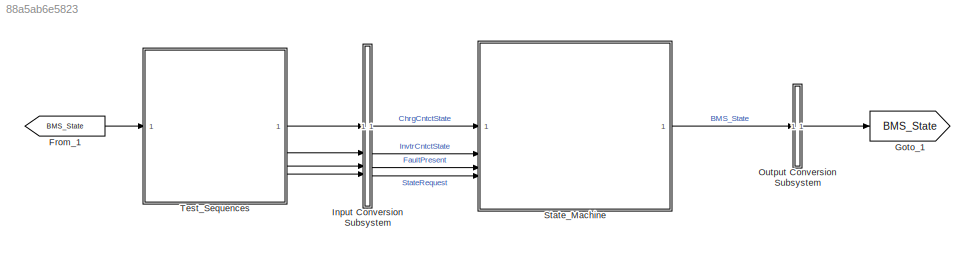
MODEL slx_88a5ab6e5823
KIND model
CONFIG AbsTol = auto
CONFIG EnableMultiTasking = off
CONFIG FixedStep = auto
CONFIG MaxStep = auto
CONFIG MinStep = auto
CONFIG RelTol = 1e-3
CONFIG SampleTimeConstraint = Unconstrained
CONFIG SolverName = FixedStepDiscrete
CONFIG StartTime = 0.0
CONFIG StopTime = 9000
BLOCK [From] From_1
  GotoTag = BMS_State
BLOCK [Goto] Goto_1
  GotoTag = BMS_State
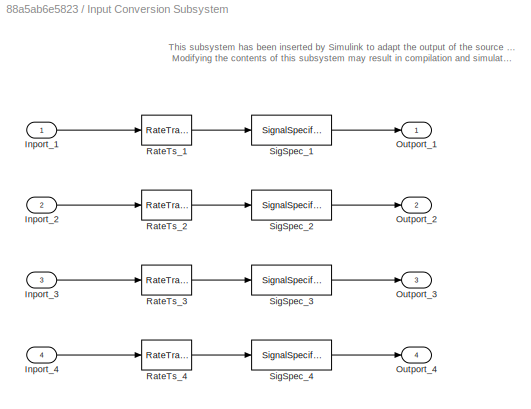
BLOCK [SubSystem] Input Conversion Subsystem
  AttributesFormatString = %<Description>
  Description = Signal spec.\nand routing
  Permissions = ReadOnly
  PermitHierarchicalResolution = ExplicitOnly
  Tag = __SLT_ICS__
  TreatAsGroupedWhenPropagatingVariantConditions = off
  UserDataPersistent = on
BLOCK [Inport] Input Conversion Subsystem/Inport_1
BLOCK [Inport] Input Conversion Subsystem/Inport_2
  Port = 2
BLOCK [Inport] Input Conversion Subsystem/Inport_3
  Port = 3
BLOCK [Inport] Input Conversion Subsystem/Inport_4
  Port = 4
BLOCK [Outport] Input Conversion Subsystem/Outport_1
BLOCK [Outport] Input Conversion Subsystem/Outport_2
  Port = 2
BLOCK [Outport] Input Conversion Subsystem/Outport_3
  Port = 3
BLOCK [Outport] Input Conversion Subsystem/Outport_4
  Port = 4
BLOCK [RateTransition] Input Conversion Subsystem/RateTs_1
  OutPortSampleTime = 0.1
BLOCK [RateTransition] Input Conversion Subsystem/RateTs_2
  OutPortSampleTime = 0.1
BLOCK [RateTransition] Input Conversion Subsystem/RateTs_3
  OutPortSampleTime = 0.1
BLOCK [RateTransition] Input Conversion Subsystem/RateTs_4
  OutPortSampleTime = 0.1
BLOCK [SignalSpecification] Input Conversion Subsystem/SigSpec_1
  Dimensions = [1]
  OutDataTypeStr = Enum: Contact
  SampleTime = 0.1
  SignalType = real
  VarSizeSig = No
BLOCK [SignalSpecification] Input Conversion Subsystem/SigSpec_2
  Dimensions = [1]
  OutDataTypeStr = Enum: Contact
  SampleTime = 0.1
  SignalType = real
  VarSizeSig = No
BLOCK [SignalSpecification] Input Conversion Subsystem/SigSpec_3
  Dimensions = [1]
  OutDataTypeStr = boolean
  SampleTime = 0.1
  SignalType = real
  VarSizeSig = No
BLOCK [SignalSpecification] Input Conversion Subsystem/SigSpec_4
  Dimensions = [1]
  OutDataTypeStr = Enum: SRE
  SampleTime = 0.1
  SignalType = real
  VarSizeSig = No
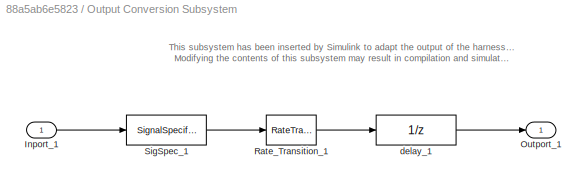
BLOCK [SubSystem] Output Conversion Subsystem
  AttributesFormatString = %<Description>
  Description = Signal spec.\nand routing
  Permissions = ReadOnly
  PermitHierarchicalResolution = ExplicitOnly
  Tag = __SLT_OCS__
  TreatAsGroupedWhenPropagatingVariantConditions = off
  UserDataPersistent = on
BLOCK [Inport] Output Conversion Subsystem/Inport_1
BLOCK [Outport] Output Conversion Subsystem/Outport_1
BLOCK [RateTransition] Output Conversion Subsystem/Rate_Transition_1
  InitialCondition = BMS_State_Enum.BMS_Standby
  OutPortSampleTimeOpt = Inherit
BLOCK [SignalSpecification] Output Conversion Subsystem/SigSpec_1
  Dimensions = [1]
  OutDataTypeStr = Enum: BMS_State_Enum
  SampleTime = 0.1
  SignalType = real
  VarSizeSig = No
BLOCK [UnitDelay] Output Conversion Subsystem/delay_1
  InitialCondition = BMS_State_Enum.BMS_Standby
  SampleTime = -1
BLOCK [ModelReference] State_Machine
  ModelNameDialog = State_Machine
  ModelReferenceVersion = 5.1
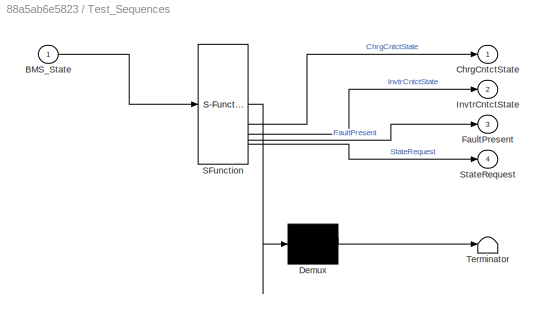
BLOCK [SubSystem] Test_Sequences
  ErrorFcn = Stateflow.Translate.translate
  PermitHierarchicalResolution = ExplicitOnly
  SFBlockType = Test Sequence
  ShowPortLabels = none
  TreatAsAtomicUnit = on
BLOCK [Demux] Test_Sequences/ Demux 
  Outputs = 1
BLOCK [S-Function] Test_Sequences/ SFunction 
  EnableBusSupport = on
  FunctionName = sf_sfun
  Parameters = 8
  PortCounts = [1 5]
  SFcnIsStateOwnerBlock = off
  SFunctionDeploymentMode = off
  Tag = Stateflow S-Function 4
BLOCK [Terminator] Test_Sequences/ Terminator 
BLOCK [Inport] Test_Sequences/BMS_State
BLOCK [Outport] Test_Sequences/ChrgCntctState
BLOCK [Outport] Test_Sequences/FaultPresent
  Port = 3
BLOCK [Outport] Test_Sequences/InvtrCntctState
  Port = 2
BLOCK [Outport] Test_Sequences/StateRequest
  Port = 4
ANNOTATION Input Conversion Subsystem: This subsystem has been inserted by Simulink to adapt the output of the source blocks to the interface required by the harnessed component. Modifying the contents of this subsystem may result in compilation and simulation failure.
ANNOTATION Output Conversion Subsystem: This subsystem has been inserted by Simulink to adapt the output of the harnessed component to the interface required by the sink blocks. Modifying the contents of this subsystem may result in compilation and simulation failure.
LINE From_1:1 -> Test_Sequences:1
LINE Input Conversion Subsystem/Inport_1:1 -> Input Conversion Subsystem/RateTs_1:1
LINE Input Conversion Subsystem/Inport_2:1 -> Input Conversion Subsystem/RateTs_2:1
LINE Input Conversion Subsystem/Inport_3:1 -> Input Conversion Subsystem/RateTs_3:1
LINE Input Conversion Subsystem/Inport_4:1 -> Input Conversion Subsystem/RateTs_4:1
LINE Input Conversion Subsystem/RateTs_1:1 -> Input Conversion Subsystem/SigSpec_1:1
LINE Input Conversion Subsystem/RateTs_2:1 -> Input Conversion Subsystem/SigSpec_2:1
LINE Input Conversion Subsystem/RateTs_3:1 -> Input Conversion Subsystem/SigSpec_3:1
LINE Input Conversion Subsystem/RateTs_4:1 -> Input Conversion Subsystem/SigSpec_4:1
LINE Input Conversion Subsystem/SigSpec_1:1 -> Input Conversion Subsystem/Outport_1:1
LINE Input Conversion Subsystem/SigSpec_2:1 -> Input Conversion Subsystem/Outport_2:1
LINE Input Conversion Subsystem/SigSpec_3:1 -> Input Conversion Subsystem/Outport_3:1
LINE Input Conversion Subsystem/SigSpec_4:1 -> Input Conversion Subsystem/Outport_4:1
LINE Input Conversion Subsystem:1 -> State_Machine:1
LINE Input Conversion Subsystem:2 -> State_Machine:2
LINE Input Conversion Subsystem:3 -> State_Machine:3
LINE Input Conversion Subsystem:4 -> State_Machine:4
LINE Output Conversion Subsystem/Inport_1:1 -> Output Conversion Subsystem/SigSpec_1:1
LINE Output Conversion Subsystem/Rate_Transition_1:1 -> Output Conversion Subsystem/delay_1:1
LINE Output Conversion Subsystem/SigSpec_1:1 -> Output Conversion Subsystem/Rate_Transition_1:1
LINE Output Conversion Subsystem/delay_1:1 -> Output Conversion Subsystem/Outport_1:1
LINE Output Conversion Subsystem:1 -> Goto_1:1
LINE State_Machine:1 -> Output Conversion Subsystem:1
LINE Test_Sequences:1 -> Input Conversion Subsystem:1
LINE Test_Sequences:2 -> Input Conversion Subsystem:2
LINE Test_Sequences:3 -> Input Conversion Subsystem:3
LINE Test_Sequences:4 -> Input Conversion Subsystem:4
CHART Test_Sequences states=42 transitions=42
  STATE_LABEL 'Standby'
  STATE_LABEL "Init\n\n%% Initialize data outputs.\nChrgCntctState = Contact.Init;\nInvtrCntctState = Contact.Init;\nFaultPresent = false;\nStateRequest = SRE.Standby;\nverify(BMS_State == BMS_State_Enum.BMS_Standby, 'Initialize to BMS State.');"
  STATE_LABEL "Init\n\n%% Initialize data outputs.\nChrgCntctState = Contact.Init;\nInvtrCntctState = Contact.Init;\nFaultPresent = false;\nStateRequest = SRE.Standby;\nverify(BMS_State == BMS_State_Enum.BMS_Standby, 'Initialize to BMS State.');"
  STATE_LABEL 'StandbyToFault'
  STATE_LABEL 'Init\n\n%% Initialize data outputs.\nChrgCntctState = Contact.Init;\nInvtrCntctState = Contact.Init;\nFaultPresent = false;\nStateRequest = SRE.Standby;\n'
  STATE_LABEL 'Insert_Fault\nFaultPresent = true;'
  STATE_LABEL "CheckForFaultState\nverify(BMS_State == BMS_State_Enum.BMS_Fault,'Verify Standby to Fault Transition');"
  STATE_LABEL '[\nafter(5,sec)\n]'
  STATE_LABEL '[\nafter(100,msec)\n]'
  STATE_LABEL 'Init\n\n%% Initialize data outputs.\nChrgCntctState = Contact.Init;\nInvtrCntctState = Contact.Init;\nFaultPresent = false;\nStateRequest = SRE.Standby;\n'
  STATE_LABEL 'Insert_Fault\nFaultPresent = true;'
  STATE_LABEL "CheckForFaultState\nverify(BMS_State == BMS_State_Enum.BMS_Fault,'Verify Standby to Fault Transition');"
  STATE_LABEL 'Charging'
  STATE_LABEL "Init\n\n%% Initialize data outputs.\nChrgCntctState = Contact.Init;\nInvtrCntctState = Contact.Init;\nFaultPresent = false;\nStateRequest = SRE.Charging;\nverify(BMS_State ~= BMS_State_Enum.BMS_Charging, 'BMS shall not transition to Charging State when charger contactors are NOT Close');"  <repeated x4 — deduplicated; at blocks: Test_Sequences>
  STATE_LABEL 'CloseChargerContactors\nChrgCntctState = Contact.Close;'
  STATE_LABEL "CheckForChargingState\nverify(BMS_State == BMS_State_Enum.BMS_Charging,'BMS shall transition to Charging State when charger contactors are Close');"
  STATE_LABEL 'OpenChargerContactors\nChrgCntctState = Contact.Open;'
  STATE_LABEL "CheckForStandbyState\nverify(BMS_State == BMS_State_Enum.BMS_Standby,'BMS shall transition to Standby State when charger contactors are Open');"
  STATE_LABEL '[\nafter(2,sec)\n]'
  STATE_LABEL '[\nafter(100,msec)\n]'
  STATE_LABEL '[\nafter(2, sec)\n]'
  STATE_LABEL '[\nafter(100,msec)\n]'
  STATE_LABEL 'CloseChargerContactors\nChrgCntctState = Contact.Close;'
  STATE_LABEL "CheckForChargingState\nverify(BMS_State == BMS_State_Enum.BMS_Charging,'BMS shall transition to Charging State when charger contactors are Close');"
  STATE_LABEL 'OpenChargerContactors\nChrgCntctState = Contact.Open;'
  STATE_LABEL "CheckForStandbyState\nverify(BMS_State == BMS_State_Enum.BMS_Standby,'BMS shall transition to Standby State when charger contactors are Open');"
  STATE_LABEL 'ChargingToFault'
  STATE_LABEL 'CloseChargerContactors\nChrgCntctState = Contact.Close;'
  STATE_LABEL "CheckForChargingState\nverify(BMS_State == BMS_State_Enum.BMS_Charging,'BMS shall transition to Charging State when charger contactors are Close');"
  STATE_LABEL 'InsertFault\nFaultPresent = true;'
  STATE_LABEL "CheckForFaultState\nverify(BMS_State == BMS_State_Enum.BMS_Fault,'BMS shall transition to Fault State when any fault is present');"
  STATE_LABEL '[\nafter(2,sec)\n]'
  STATE_LABEL '[\nafter(100,msec)\n]'
  STATE_LABEL '[\nafter(2, sec)\n]'
  STATE_LABEL '[\nafter(100,msec)\n]'
  STATE_LABEL 'CloseChargerContactors\nChrgCntctState = Contact.Close;'
  STATE_LABEL "CheckForChargingState\nverify(BMS_State == BMS_State_Enum.BMS_Charging,'BMS shall transition to Charging State when charger contactors are Close');"
